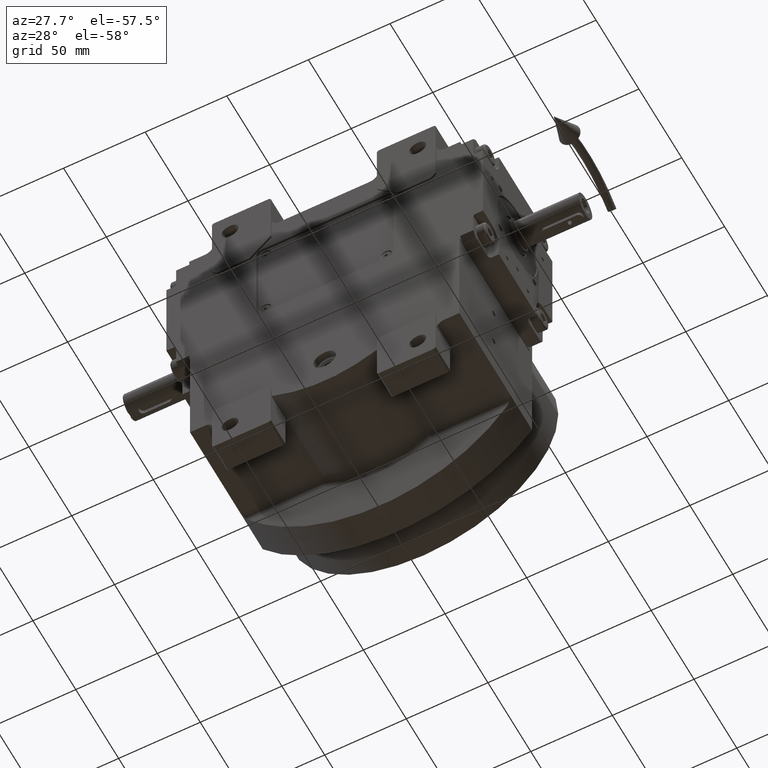
[diagram: clean part render]
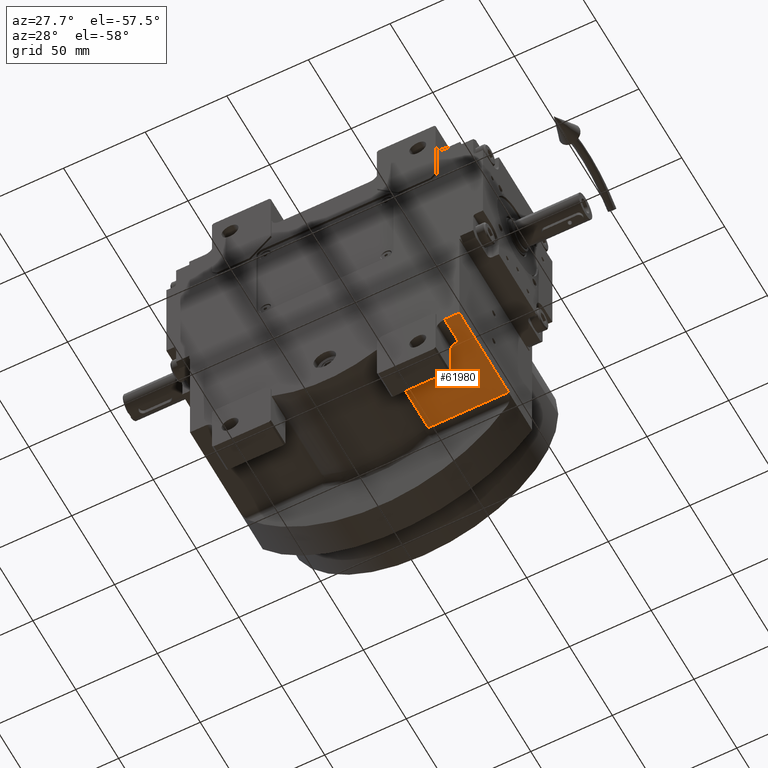
[diagram: same view with one face highlighted and labeled with its STEP entity id]
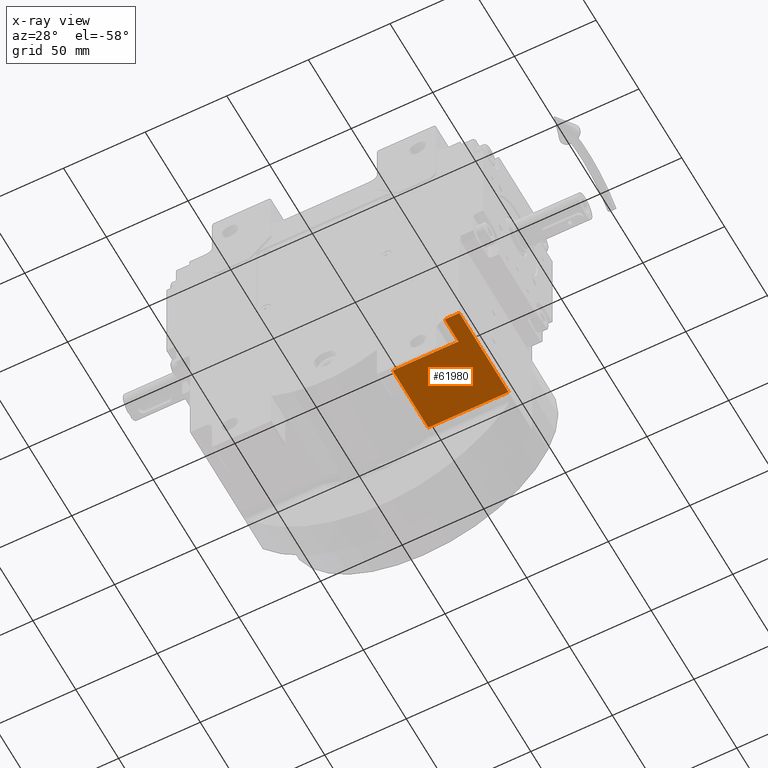
[diagram: x-ray of the same camera — body ghosted, the highlighted face saturated]
A machine part, auxiliary view. The second image highlights one B-rep face of the part: STEP entity #61980.
The next image is the same camera in x-ray: the body ghosted, the highlighted face saturated — about 0% of this face is hidden behind the body in this view.
In plain terms, the highlighted planar face has unit normal (0, 0, 1).
Its self-contained STEP definition (entity closure, byte-faithful):
#2209 = DIRECTION ( 'NONE',  ( 1.715526660195324723E-16, 1.000000000000000000, 0.000000000000000000 ) ) ;
#2337 = EDGE_CURVE ( 'NONE', #7049, #26649, #61303, .T. ) ;
#3787 = EDGE_CURVE ( 'NONE', #25856, #51430, #28330, .T. ) ;
#4900 = CARTESIAN_POINT ( 'NONE',  ( 73.50000000000000000, -24.50000000000000000, -58.50000000000000000 ) ) ;
#7049 = VERTEX_POINT ( 'NONE', #40597 ) ;
#7623 = ORIENTED_EDGE ( 'NONE', *, *, #15357, .T. ) ;
#10775 = EDGE_CURVE ( 'NONE', #26649, #39203, #48390, .T. ) ;
#11899 = DIRECTION ( 'NONE',  ( 0.000000000000000000, 0.000000000000000000, 1.000000000000000000 ) ) ;
#15357 = EDGE_CURVE ( 'NONE', #25856, #47438, #45907, .T. ) ;
#15468 = EDGE_LOOP ( 'NONE', ( #30579, #61058, #36922, #7623, #22043, #54563 ) ) ;
#18632 = CARTESIAN_POINT ( 'NONE',  ( 73.50000000000000000, -24.50000000000000000, -58.50000000000000000 ) ) ;
#19972 = LINE ( 'NONE', #39685, #61008 ) ;
#22043 = ORIENTED_EDGE ( 'NONE', *, *, #33775, .T. ) ;
#22365 = CARTESIAN_POINT ( 'NONE',  ( 82.50000025238179546, 16.91834884610074852, -58.49999999999619860 ) ) ;
#23165 = DIRECTION ( 'NONE',  ( 0.000000000000000000, -1.000000000000000000, 0.000000000000000000 ) ) ;
#24506 = CARTESIAN_POINT ( 'NONE',  ( 73.50000000000000000, -40.50000000000000000, -58.50000000000000000 ) ) ;
#25856 = VERTEX_POINT ( 'NONE', #4900 ) ;
#26649 = VERTEX_POINT ( 'NONE', #22365 ) ;
#26884 = VECTOR ( 'NONE', #39676, 1000.000000000000000 ) ;
#28330 = LINE ( 'NONE', #18632, #63478 ) ;
#28587 = VECTOR ( 'NONE', #35622, 1000.000000000000000 ) ;
#29330 = CARTESIAN_POINT ( 'NONE',  ( 82.50000000000000000, 16.91834412991290293, -58.50000000000000000 ) ) ;
#30579 = ORIENTED_EDGE ( 'NONE', *, *, #2337, .F. ) ;
#30692 = PLANE ( 'NONE',  #59745 ) ;
#31315 = CARTESIAN_POINT ( 'NONE',  ( 82.50000000000000000, -40.50000000000000000, -58.50000000000000000 ) ) ;
#31574 = CARTESIAN_POINT ( 'NONE',  ( 82.50000000000000000, -40.50000000000000000, -58.50000000000000000 ) ) ;
#33775 = EDGE_CURVE ( 'NONE', #47438, #39203, #62332, .T. ) ;
#35092 = VECTOR ( 'NONE', #35806, 1000.000000000000000 ) ;
#35622 = DIRECTION ( 'NONE',  ( -1.000000000000000000, 0.000000000000000000, 0.000000000000000000 ) ) ;
#35806 = DIRECTION ( 'NONE',  ( 0.000000000000000000, 1.000000000000000000, 0.000000000000000000 ) ) ;
#36922 = ORIENTED_EDGE ( 'NONE', *, *, #3787, .F. ) ;
#39203 = VERTEX_POINT ( 'NONE', #63657 ) ;
#39676 = DIRECTION ( 'NONE',  ( -1.000000000000000000, 0.000000000000000000, 0.000000000000000000 ) ) ;
#39685 = CARTESIAN_POINT ( 'NONE',  ( 82.50000000000000000, -40.50000000000000000, -58.50000000000000000 ) ) ;
#40597 = CARTESIAN_POINT ( 'NONE',  ( 82.50000000000000000, -40.50000000000000000, -58.50000000000000000 ) ) ;
#41629 = DIRECTION ( 'NONE',  ( -1.000000000000000000, 0.000000000000000000, 0.000000000000000000 ) ) ;
#42912 = CARTESIAN_POINT ( 'NONE',  ( 33.32502203188470702, -24.50000000000000000, -58.50000000000000000 ) ) ;
#45907 = LINE ( 'NONE', #54659, #28587 ) ;
#46172 = CARTESIAN_POINT ( 'NONE',  ( 33.32502203188470702, -24.50000000000000000, -58.50000000000000000 ) ) ;
#47438 = VERTEX_POINT ( 'NONE', #46172 ) ;
#48390 = LINE ( 'NONE', #29330, #26884 ) ;
#51430 = VERTEX_POINT ( 'NONE', #24506 ) ;
#51655 = EDGE_CURVE ( 'NONE', #7049, #51430, #19972, .T. ) ;
#54527 = DIRECTION ( 'NONE',  ( -1.000000000000000000, 0.000000000000000000, 0.000000000000000000 ) ) ;
#54563 = ORIENTED_EDGE ( 'NONE', *, *, #10775, .F. ) ;
#54659 = CARTESIAN_POINT ( 'NONE',  ( 73.50000000000000000, -24.50000000000000000, -58.50000000000000000 ) ) ;
#56354 = VECTOR ( 'NONE', #2209, 1000.000000000000000 ) ;
#56493 = FACE_OUTER_BOUND ( 'NONE', #15468, .T. ) ;
#59745 = AXIS2_PLACEMENT_3D ( 'NONE', #31315, #11899, #41629 ) ;
#61008 = VECTOR ( 'NONE', #54527, 1000.000000000000000 ) ;
#61058 = ORIENTED_EDGE ( 'NONE', *, *, #51655, .T. ) ;
#61303 = LINE ( 'NONE', #31574, #35092 ) ;
#61980 = ADVANCED_FACE ( 'NONE', ( #56493 ), #30692, .F. ) ;
#62332 = LINE ( 'NONE', #42912, #56354 ) ;
#63478 = VECTOR ( 'NONE', #23165, 1000.000000000000000 ) ;
#63657 = CARTESIAN_POINT ( 'NONE',  ( 33.32502203356354897, 16.91834412994175096, -58.50000000000000000 ) ) ;